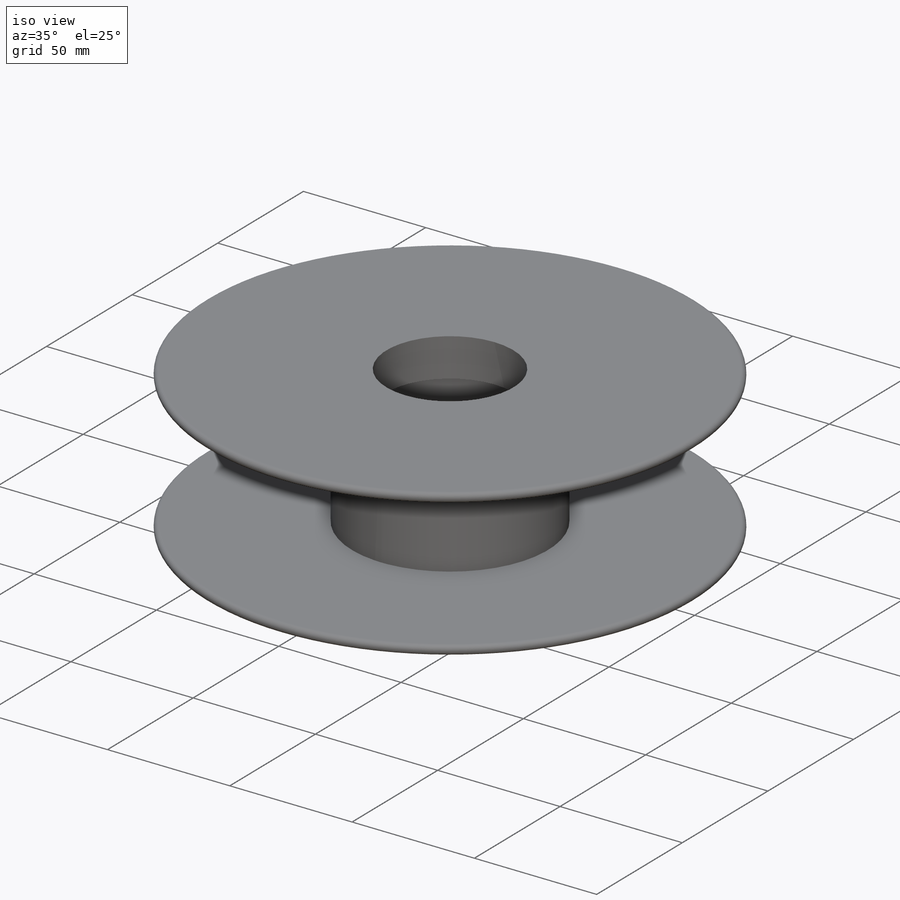
[diagram: iso view]
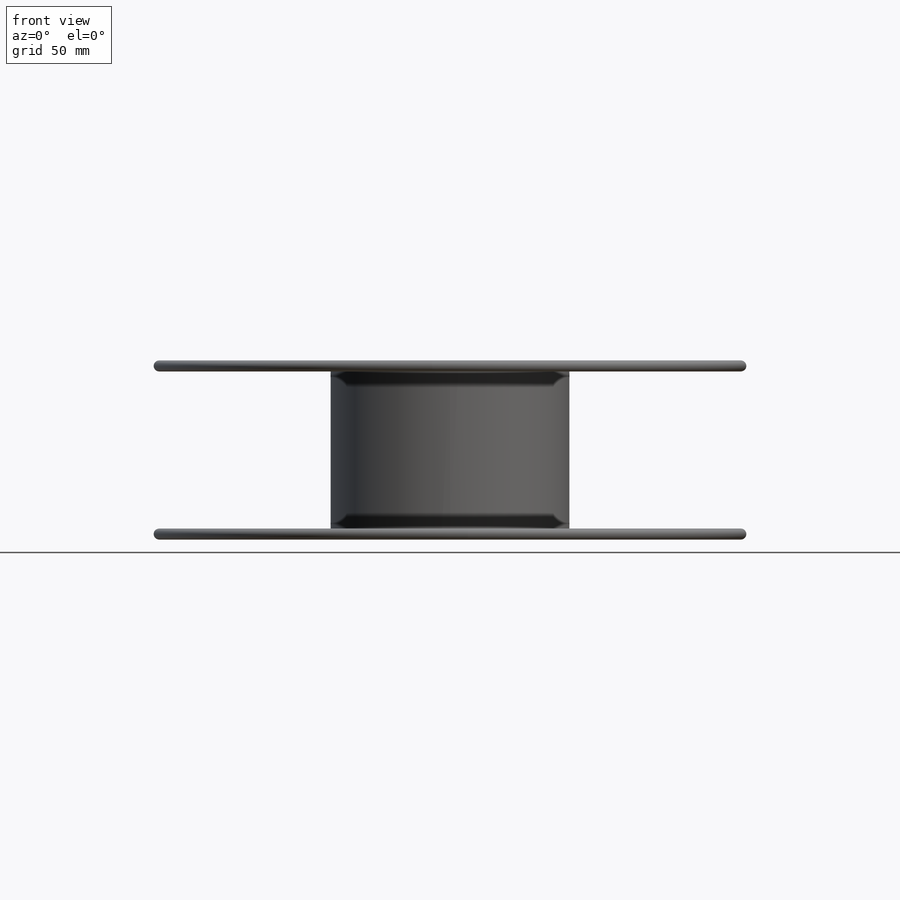
[diagram: front view]
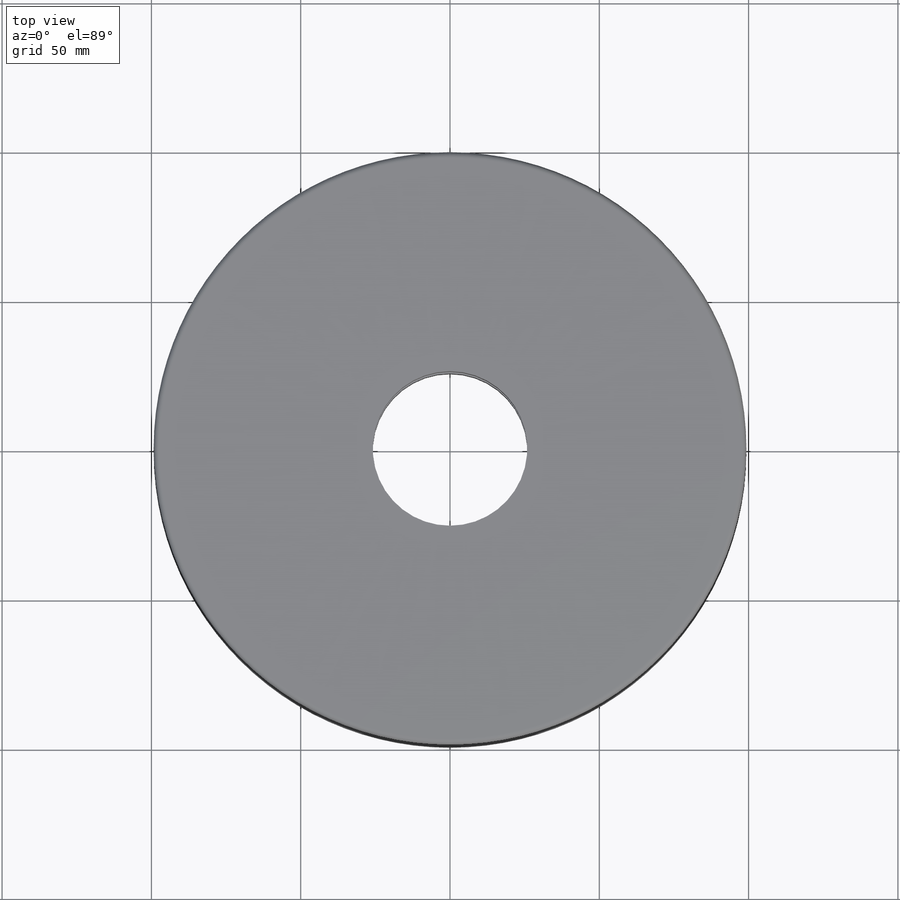
[diagram: top view]
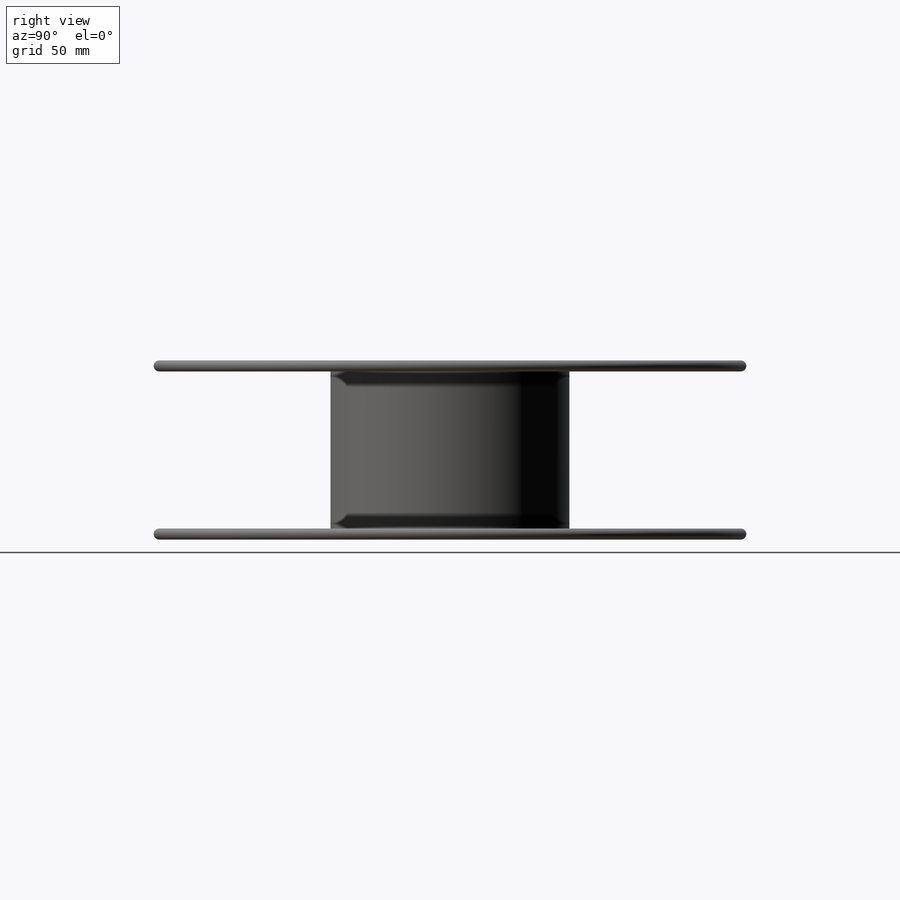
[diagram: right view]
SOLIDWORKS PART (.sldprt)
format: sldprt  version: not decoded by parser v0  size: 214,528 bytes
history: native  units: mm
features: sketch x3, extrude x3, material x1, fillet x1, plane x1, mirror x1 (+12 scaffold rows collapsed)
feature tree (22):
  scaffold x12  (default folders/planes/origin — collapsed)
  material  "Material <not specified>"
  sketch  "Sketch1"  dims[D1=198.5mm D2=51.75mm]
  extrude  "Boss-Extrude1"  Depth=3.7mm
  fillet  "Fillet1"  [1 undecoded]
  sketch  "Sketch2"  dims[D1=80.0mm]
  extrude  "Boss-Extrude2"  Depth=12mm
  plane  "Plane1"  Offset=30mm
  mirror  "Mirror2"
  sketch  "Sketch3"  dims[D1=0.0mm D2=5.0mm]
  extrude  "Boss-Extrude3"  [1 undecoded]
decode coverage: 5 of 8 modeling features carry decoded parameters
note: 2 parameter values undecoded
note: suppression state not decoded; provenance and decode notes live in map.json
